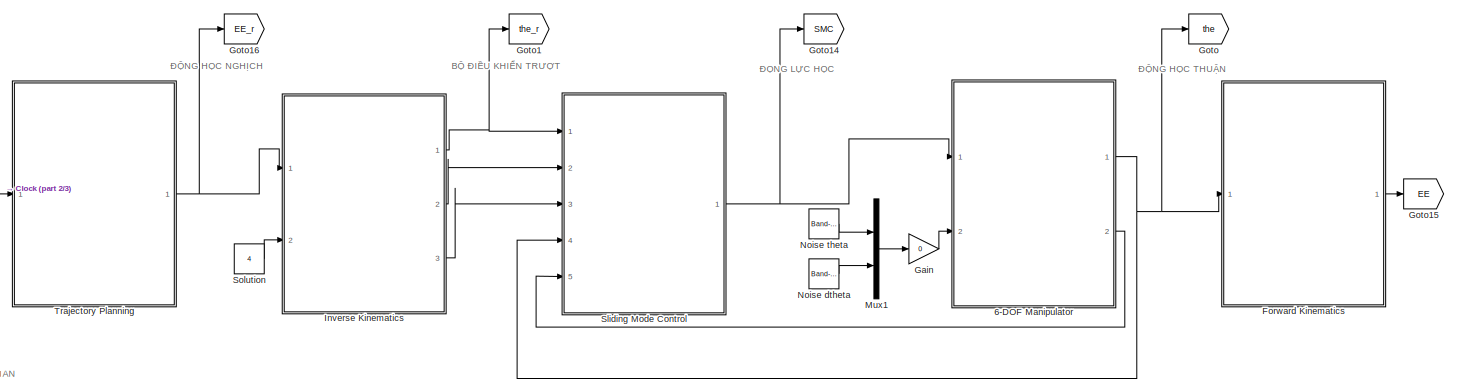
[diagram: root canvas - part 1/3, full width, top band]
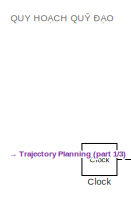
[diagram: root canvas - part 2/3, top left region]
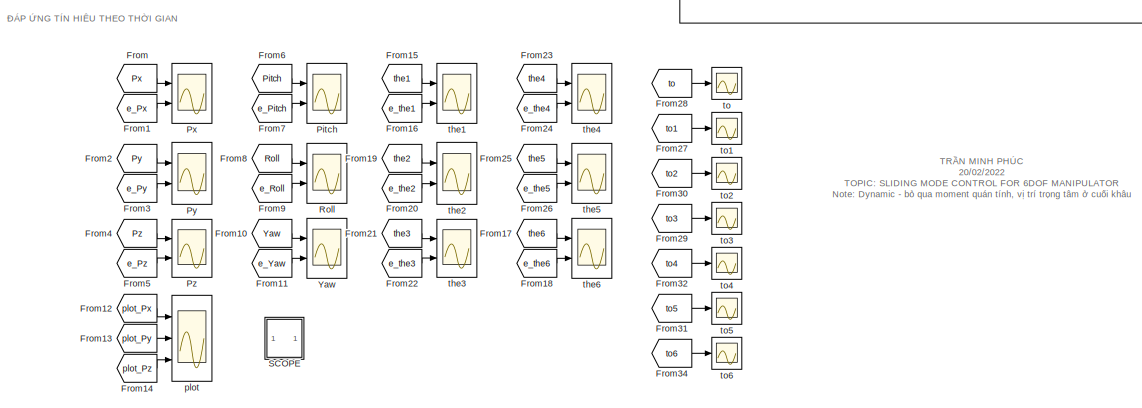
[diagram: root canvas - part 3/3, bottom center region]
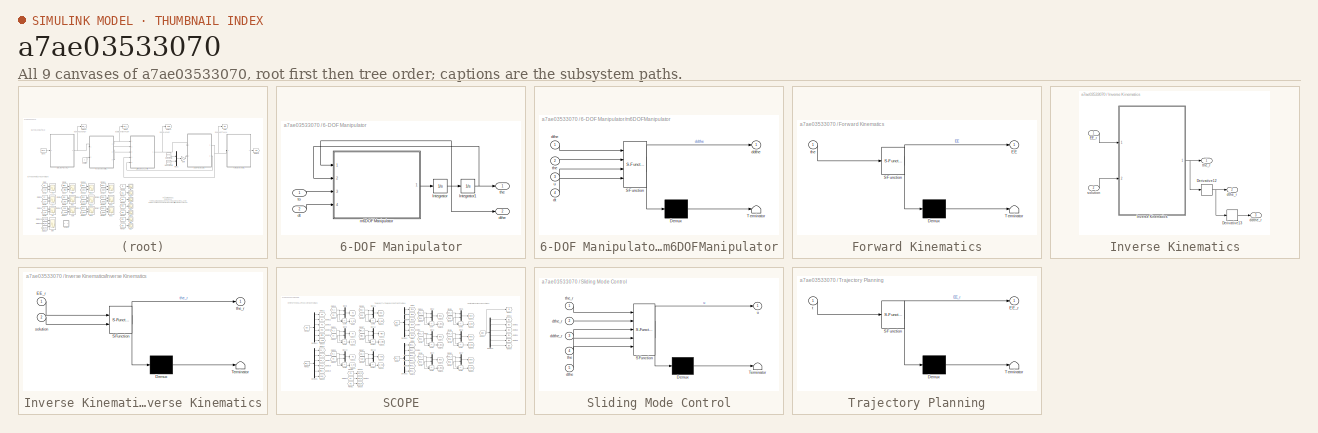
[diagram: thumbnail index - all 9 canvases of the model, root first then tree order]
MODEL slx_a7ae03533070
KIND model
CONFIG AbsTol = auto
CONFIG EnableMultiTasking = off
CONFIG FixedStep = 0.01
CONFIG MaxStep = auto
CONFIG MinStep = auto
CONFIG RelTol = 1e-3
CONFIG SampleTimeConstraint = Unconstrained
CONFIG SolverName = ode14x
CONFIG StartTime = 0.0
CONFIG StopTime = 100
BLOCK [SubSystem] 6-DOF Manipulator
  Ports = [2, 2]
  RequestExecContextInheritance = off
BLOCK [Integrator] 6-DOF Manipulator/Integrator
  InitialCondition = [0.01;0.01;0.01;0.01;0.01;0.01]
  Ports = [1, 1]
BLOCK [Integrator] 6-DOF Manipulator/Integrator1
  InitialCondition = [0.01;0.01;0.01;0.01;0.01;0.01]
  Ports = [1, 1]
BLOCK [Inport] 6-DOF Manipulator/dt
  Port = 2
BLOCK [Outport] 6-DOF Manipulator/dthe
  Port = 2
BLOCK [SubSystem] 6-DOF Manipulator/m6DOFManipulator
  ErrorFcn = Stateflow.Translate.translate
  PermitHierarchicalResolution = ExplicitOnly
  Ports = [4, 1]
  RequestExecContextInheritance = off
  SFBlockType = MATLAB Function
  TreatAsAtomicUnit = on
BLOCK [Demux] 6-DOF Manipulator/m6DOFManipulator/ Demux 
  Outputs = 1
  Ports = [1, 1]
BLOCK [S-Function] 6-DOF Manipulator/m6DOFManipulator/ SFunction 
  EnableBusSupport = on
  FunctionName = sf_sfun
  PortCounts = [4 2]
  Ports = [4, 2]
  SFcnIsStateOwnerBlock = off
  SFunctionDeploymentMode = off
  Tag = Stateflow S-Function 2
BLOCK [Terminator] 6-DOF Manipulator/m6DOFManipulator/ Terminator 
BLOCK [Outport] 6-DOF Manipulator/m6DOFManipulator/ddthe
BLOCK [Inport] 6-DOF Manipulator/m6DOFManipulator/dt
  Port = 4
BLOCK [Inport] 6-DOF Manipulator/m6DOFManipulator/dthe
BLOCK [Inport] 6-DOF Manipulator/m6DOFManipulator/the
  Port = 2
BLOCK [Inport] 6-DOF Manipulator/m6DOFManipulator/u
  Port = 3
BLOCK [Outport] 6-DOF Manipulator/the
BLOCK [Inport] 6-DOF Manipulator/to
BLOCK [Clock] Clock
  DisplayTime = on
BLOCK [SubSystem] Forward Kinematics
  ErrorFcn = Stateflow.Translate.translate
  PermitHierarchicalResolution = ExplicitOnly
  Ports = [1, 1]
  RequestExecContextInheritance = off
  SFBlockType = MATLAB Function
  TreatAsAtomicUnit = on
BLOCK [Demux] Forward Kinematics/ Demux 
  Outputs = 1
  Ports = [1, 1]
BLOCK [S-Function] Forward Kinematics/ SFunction 
  EnableBusSupport = on
  FunctionName = sf_sfun
  PortCounts = [1 2]
  Ports = [1, 2]
  SFcnIsStateOwnerBlock = off
  SFunctionDeploymentMode = off
  Tag = Stateflow S-Function 5
BLOCK [Terminator] Forward Kinematics/ Terminator 
BLOCK [Outport] Forward Kinematics/EE
BLOCK [Inport] Forward Kinematics/the
BLOCK [From] From
  GotoTag = Px
  TagVisibility = global
BLOCK [From] From1
  GotoTag = e_Px
  TagVisibility = global
BLOCK [From] From10
  GotoTag = Yaw
  TagVisibility = global
BLOCK [From] From11
  GotoTag = e_Yaw
  TagVisibility = global
BLOCK [From] From12
  GotoTag = plot_Px
  TagVisibility = global
BLOCK [From] From13
  GotoTag = plot_Py
  TagVisibility = global
BLOCK [From] From14
  GotoTag = plot_Pz
  TagVisibility = global
BLOCK [From] From15
  GotoTag = the1
  TagVisibility = global
BLOCK [From] From16
  GotoTag = e_the1
  TagVisibility = global
BLOCK [From] From17
  GotoTag = the6
  TagVisibility = global
BLOCK [From] From18
  GotoTag = e_the6
  TagVisibility = global
BLOCK [From] From19
  GotoTag = the2
  TagVisibility = global
BLOCK [From] From2
  GotoTag = Py
  TagVisibility = global
BLOCK [From] From20
  GotoTag = e_the2
  TagVisibility = global
BLOCK [From] From21
  GotoTag = the3
  TagVisibility = global
BLOCK [From] From22
  GotoTag = e_the3
  TagVisibility = global
BLOCK [From] From23
  GotoTag = the4
  TagVisibility = global
BLOCK [From] From24
  GotoTag = e_the4
  TagVisibility = global
BLOCK [From] From25
  GotoTag = the5
  TagVisibility = global
BLOCK [From] From26
  GotoTag = e_the5
  TagVisibility = global
BLOCK [From] From27
  GotoTag = to1
  TagVisibility = global
BLOCK [From] From28
  GotoTag = to
  TagVisibility = global
BLOCK [From] From29
  GotoTag = to3
  TagVisibility = global
BLOCK [From] From3
  GotoTag = e_Py
  TagVisibility = global
BLOCK [From] From30
  GotoTag = to2
  TagVisibility = global
BLOCK [From] From31
  GotoTag = to5
  TagVisibility = global
BLOCK [From] From32
  GotoTag = to4
  TagVisibility = global
BLOCK [From] From34
  GotoTag = to6
  TagVisibility = global
BLOCK [From] From4
  GotoTag = Pz
  TagVisibility = global
BLOCK [From] From5
  GotoTag = e_Pz
  TagVisibility = global
BLOCK [From] From6
  GotoTag = Pitch
  TagVisibility = global
BLOCK [From] From7
  GotoTag = e_Pitch
  TagVisibility = global
BLOCK [From] From8
  GotoTag = Roll
  TagVisibility = global
BLOCK [From] From9
  GotoTag = e_Roll
  TagVisibility = global
BLOCK [Gain] Gain
  Gain = 0
BLOCK [Goto] Goto
  GotoTag = the
  TagVisibility = global
BLOCK [Goto] Goto1
  GotoTag = the_r
  TagVisibility = global
BLOCK [Goto] Goto14
  GotoTag = SMC
  TagVisibility = global
BLOCK [Goto] Goto15
  GotoTag = EE
  TagVisibility = global
BLOCK [Goto] Goto16
  GotoTag = EE_r
  TagVisibility = global
BLOCK [SubSystem] Inverse Kinematics
  Ports = [2, 3]
  RequestExecContextInheritance = off
BLOCK [Derivative] Inverse Kinematics/Derivative12
BLOCK [Derivative] Inverse Kinematics/Derivative13
BLOCK [Inport] Inverse Kinematics/EE_r
BLOCK [SubSystem] Inverse Kinematics/Inverse Kinematics
  ErrorFcn = Stateflow.Translate.translate
  PermitHierarchicalResolution = ExplicitOnly
  Ports = [2, 1]
  RequestExecContextInheritance = off
  SFBlockType = MATLAB Function
  TreatAsAtomicUnit = on
BLOCK [Demux] Inverse Kinematics/Inverse Kinematics/ Demux 
  Outputs = 1
  Ports = [1, 1]
BLOCK [S-Function] Inverse Kinematics/Inverse Kinematics/ SFunction 
  EnableBusSupport = on
  FunctionName = sf_sfun
  PortCounts = [2 2]
  Ports = [2, 2]
  SFcnIsStateOwnerBlock = off
  SFunctionDeploymentMode = off
  Tag = Stateflow S-Function 6
BLOCK [Terminator] Inverse Kinematics/Inverse Kinematics/ Terminator 
BLOCK [Inport] Inverse Kinematics/Inverse Kinematics/EE_r
BLOCK [Inport] Inverse Kinematics/Inverse Kinematics/solution
  Port = 2
BLOCK [Outport] Inverse Kinematics/Inverse Kinematics/the_r
BLOCK [Outport] Inverse Kinematics/ddthe_r
  Port = 3
  VectorParamsAs1DForOutWhenUnconnected = off
BLOCK [Outport] Inverse Kinematics/dthe_r
  Port = 2
  VectorParamsAs1DForOutWhenUnconnected = off
BLOCK [Inport] Inverse Kinematics/solution
  Port = 2
BLOCK [Outport] Inverse Kinematics/the_r
  VectorParamsAs1DForOutWhenUnconnected = off
BLOCK [Mux] Mux1
  DisplayOption = bar
  Inputs = 2
  Ports = [2, 1]
BLOCK [Reference] Noise dtheta  REF=simulink/Sources/Band-Limited
White Noise
  Ports = [0, 1]
  SourceBlock = simulink/Sources/Band-Limited\nWhite Noise
  SourceProductBaseCode = SL
  SourceType = Band-Limited White Noise.
BLOCK [Reference] Noise theta  REF=simulink/Sources/Band-Limited
White Noise
  Ports = [0, 1]
  SourceBlock = simulink/Sources/Band-Limited\nWhite Noise
  SourceProductBaseCode = SL
  SourceType = Band-Limited White Noise.
BLOCK [Scope] Pitch
  Floating = off
  NumInputPorts = 2
  Ports = [2]
  ScopeSpecificationString = Simulink.scopes.TimeScopeBlockCfg('CurrentConfiguration', extmgr.ConfigurationSet(extmgr.Configuration('Core','General UI',true,'FigureColor',[1 1 1]),extmgr.Configuration('Core','Source UI',true),extmgr.Configuration('Sources','WiredSimulink',true,'DataLoggingVariableName','ScopeData1'),extmgr.Configuration('Visuals','Time Domain',true,'SerializedDisplays',{struct('MinYLimReal','-1.8012','MaxYLim...<+3058ch>
BLOCK [Scope] Px
  Floating = off
  NumInputPorts = 2
  Ports = [2]
  ScopeSpecificationString = Simulink.scopes.TimeScopeBlockCfg('CurrentConfiguration', extmgr.ConfigurationSet(extmgr.Configuration('Core','General UI',true,'FigureColor',[1 1 1]),extmgr.Configuration('Core','Source UI',true),extmgr.Configuration('Sources','WiredSimulink',true,'DataLoggingVariableName','ScopeData17'),extmgr.Configuration('Visuals','Time Domain',true,'SerializedDisplays',{struct('MinYLimReal','392.9535','MaxYL...<+3029ch>
BLOCK [Scope] Py
  Floating = off
  NumInputPorts = 2
  Ports = [2]
  ScopeSpecificationString = Simulink.scopes.TimeScopeBlockCfg('CurrentConfiguration', extmgr.ConfigurationSet(extmgr.Configuration('Core','General UI',true,'FigureColor',[1 1 1]),extmgr.Configuration('Core','Source UI',true),extmgr.Configuration('Sources','WiredSimulink',true,'DataLoggingVariableName','ScopeData18'),extmgr.Configuration('Visuals','Time Domain',true,'SerializedDisplays',{struct('MinYLimReal','-63.97672','MaxY...<+3042ch>
BLOCK [Scope] Pz
  Floating = off
  NumInputPorts = 2
  Ports = [2]
  ScopeSpecificationString = Simulink.scopes.TimeScopeBlockCfg('CurrentConfiguration', extmgr.ConfigurationSet(extmgr.Configuration('Core','General UI',true,'FigureColor',[1 1 1]),extmgr.Configuration('Core','Source UI',true),extmgr.Configuration('Sources','WiredSimulink',true),extmgr.Configuration('Visuals','Time Domain',true,'SerializedDisplays',{struct('MinYLimReal','587.28849','MaxYLimReal','712.71261','YLabelReal','Biên ...<+3006ch>
BLOCK [Scope] Roll
  Floating = off
  NumInputPorts = 2
  Ports = [2]
  ScopeSpecificationString = Simulink.scopes.TimeScopeBlockCfg('CurrentConfiguration', extmgr.ConfigurationSet(extmgr.Configuration('Core','General UI',true,'FigureColor',[1 1 1]),extmgr.Configuration('Core','Source UI',true),extmgr.Configuration('Sources','WiredSimulink',true,'DataLoggingVariableName','ScopeData2'),extmgr.Configuration('Visuals','Time Domain',true,'SerializedDisplays',{struct('MinYLimReal','-3.42628','MaxYLi...<+3052ch>
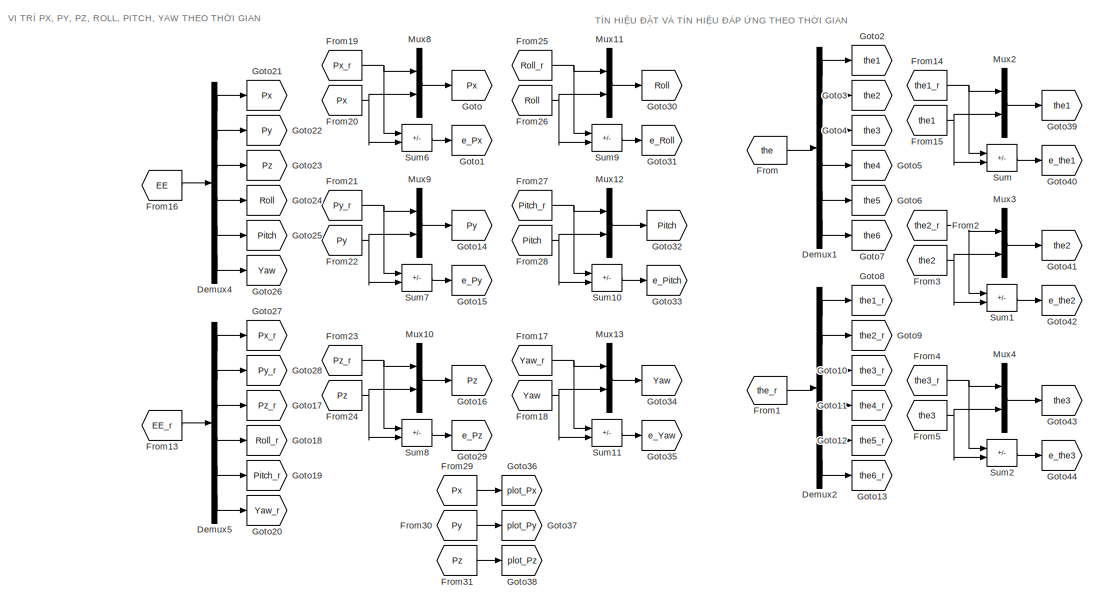
[diagram: SCOPE - part 1/2, center side, full height]
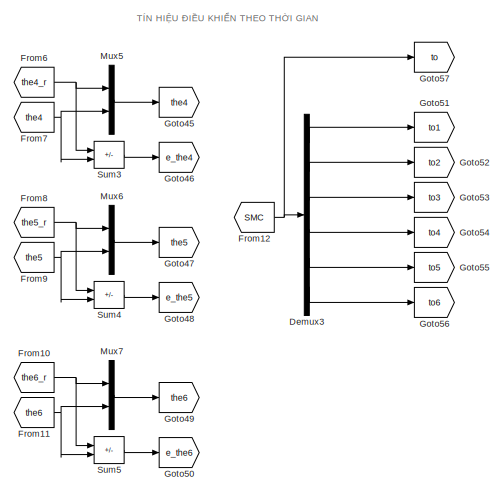
[diagram: SCOPE - part 2/2, right side, full height]
BLOCK [SubSystem] SCOPE
  NameLocation = right
  Ports = []
  RequestExecContextInheritance = off
BLOCK [Demux] SCOPE/Demux1
  Outputs = 6
  Ports = [1, 6]
BLOCK [Demux] SCOPE/Demux2
  Outputs = 6
  Ports = [1, 6]
BLOCK [Demux] SCOPE/Demux3
  Outputs = 6
  Ports = [1, 6]
BLOCK [Demux] SCOPE/Demux4
  Outputs = 6
  Ports = [1, 6]
BLOCK [Demux] SCOPE/Demux5
  Outputs = 6
  Ports = [1, 6]
BLOCK [From] SCOPE/From
  GotoTag = the
  TagVisibility = global
BLOCK [From] SCOPE/From1
  GotoTag = the_r
  TagVisibility = global
BLOCK [From] SCOPE/From10
  GotoTag = the6_r
BLOCK [From] SCOPE/From11
  GotoTag = the6
BLOCK [From] SCOPE/From12
  GotoTag = SMC
  TagVisibility = global
BLOCK [From] SCOPE/From13
  GotoTag = EE_r
  TagVisibility = global
BLOCK [From] SCOPE/From14
  GotoTag = the1_r
BLOCK [From] SCOPE/From15
  GotoTag = the1
BLOCK [From] SCOPE/From16
  GotoTag = EE
  TagVisibility = global
BLOCK [From] SCOPE/From17
  GotoTag = Yaw_r
BLOCK [From] SCOPE/From18
  GotoTag = Yaw
BLOCK [From] SCOPE/From19
  GotoTag = Px_r
BLOCK [From] SCOPE/From2
  GotoTag = the2_r
BLOCK [From] SCOPE/From20
  GotoTag = Px
BLOCK [From] SCOPE/From21
  GotoTag = Py_r
BLOCK [From] SCOPE/From22
  GotoTag = Py
BLOCK [From] SCOPE/From23
  GotoTag = Pz_r
BLOCK [From] SCOPE/From24
  GotoTag = Pz
BLOCK [From] SCOPE/From25
  GotoTag = Roll_r
BLOCK [From] SCOPE/From26
  GotoTag = Roll
BLOCK [From] SCOPE/From27
  GotoTag = Pitch_r
BLOCK [From] SCOPE/From28
  GotoTag = Pitch
BLOCK [From] SCOPE/From29
  GotoTag = Px
BLOCK [From] SCOPE/From3
  GotoTag = the2
BLOCK [From] SCOPE/From30
  GotoTag = Py
BLOCK [From] SCOPE/From31
  GotoTag = Pz
BLOCK [From] SCOPE/From4
  GotoTag = the3_r
BLOCK [From] SCOPE/From5
  GotoTag = the3
BLOCK [From] SCOPE/From6
  GotoTag = the4_r
BLOCK [From] SCOPE/From7
  GotoTag = the4
BLOCK [From] SCOPE/From8
  GotoTag = the5_r
BLOCK [From] SCOPE/From9
  GotoTag = the5
BLOCK [Goto] SCOPE/Goto
  GotoTag = Px
  TagVisibility = global
BLOCK [Goto] SCOPE/Goto1
  GotoTag = e_Px
  TagVisibility = global
BLOCK [Goto] SCOPE/Goto10
  GotoTag = the3_r
BLOCK [Goto] SCOPE/Goto11
  GotoTag = the4_r
BLOCK [Goto] SCOPE/Goto12
  GotoTag = the5_r
BLOCK [Goto] SCOPE/Goto13
  GotoTag = the6_r
BLOCK [Goto] SCOPE/Goto14
  GotoTag = Py
  TagVisibility = global
BLOCK [Goto] SCOPE/Goto15
  GotoTag = e_Py
  TagVisibility = global
BLOCK [Goto] SCOPE/Goto16
  GotoTag = Pz
  TagVisibility = global
BLOCK [Goto] SCOPE/Goto17
  GotoTag = Pz_r
BLOCK [Goto] SCOPE/Goto18
  GotoTag = Roll_r
BLOCK [Goto] SCOPE/Goto19
  GotoTag = Pitch_r
BLOCK [Goto] SCOPE/Goto2
  GotoTag = the1
BLOCK [Goto] SCOPE/Goto20
  GotoTag = Yaw_r
BLOCK [Goto] SCOPE/Goto21
  GotoTag = Px
BLOCK [Goto] SCOPE/Goto22
  GotoTag = Py
BLOCK [Goto] SCOPE/Goto23
  GotoTag = Pz
BLOCK [Goto] SCOPE/Goto24
  GotoTag = Roll
BLOCK [Goto] SCOPE/Goto25
  GotoTag = Pitch
BLOCK [Goto] SCOPE/Goto26
  GotoTag = Yaw
BLOCK [Goto] SCOPE/Goto27
  GotoTag = Px_r
BLOCK [Goto] SCOPE/Goto28
  GotoTag = Py_r
BLOCK [Goto] SCOPE/Goto29
  GotoTag = e_Pz
  TagVisibility = global
BLOCK [Goto] SCOPE/Goto3
  GotoTag = the2
BLOCK [Goto] SCOPE/Goto30
  GotoTag = Roll
  TagVisibility = global
BLOCK [Goto] SCOPE/Goto31
  GotoTag = e_Roll
  TagVisibility = global
BLOCK [Goto] SCOPE/Goto32
  GotoTag = Pitch
  TagVisibility = global
BLOCK [Goto] SCOPE/Goto33
  GotoTag = e_Pitch
  TagVisibility = global
BLOCK [Goto] SCOPE/Goto34
  GotoTag = Yaw
  TagVisibility = global
BLOCK [Goto] SCOPE/Goto35
  GotoTag = e_Yaw
  TagVisibility = global
BLOCK [Goto] SCOPE/Goto36
  GotoTag = plot_Px
  TagVisibility = global
BLOCK [Goto] SCOPE/Goto37
  GotoTag = plot_Py
  TagVisibility = global
BLOCK [Goto] SCOPE/Goto38
  GotoTag = plot_Pz
  TagVisibility = global
BLOCK [Goto] SCOPE/Goto39
  GotoTag = the1
  TagVisibility = global
BLOCK [Goto] SCOPE/Goto4
  GotoTag = the3
BLOCK [Goto] SCOPE/Goto40
  GotoTag = e_the1
  TagVisibility = global
BLOCK [Goto] SCOPE/Goto41
  GotoTag = the2
  TagVisibility = global
BLOCK [Goto] SCOPE/Goto42
  GotoTag = e_the2
  TagVisibility = global
BLOCK [Goto] SCOPE/Goto43
  GotoTag = the3
  TagVisibility = global
BLOCK [Goto] SCOPE/Goto44
  GotoTag = e_the3
  TagVisibility = global
BLOCK [Goto] SCOPE/Goto45
  GotoTag = the4
  TagVisibility = global
BLOCK [Goto] SCOPE/Goto46
  GotoTag = e_the4
  TagVisibility = global
BLOCK [Goto] SCOPE/Goto47
  GotoTag = the5
  TagVisibility = global
BLOCK [Goto] SCOPE/Goto48
  GotoTag = e_the5
  TagVisibility = global
BLOCK [Goto] SCOPE/Goto49
  GotoTag = the6
  TagVisibility = global
BLOCK [Goto] SCOPE/Goto5
  GotoTag = the4
BLOCK [Goto] SCOPE/Goto50
  GotoTag = e_the6
  TagVisibility = global
BLOCK [Goto] SCOPE/Goto51
  GotoTag = to1
  TagVisibility = global
BLOCK [Goto] SCOPE/Goto52
  GotoTag = to2
  TagVisibility = global
BLOCK [Goto] SCOPE/Goto53
  GotoTag = to3
  TagVisibility = global
BLOCK [Goto] SCOPE/Goto54
  GotoTag = to4
  TagVisibility = global
BLOCK [Goto] SCOPE/Goto55
  GotoTag = to5
  TagVisibility = global
BLOCK [Goto] SCOPE/Goto56
  GotoTag = to6
  TagVisibility = global
BLOCK [Goto] SCOPE/Goto57
  GotoTag = to
  TagVisibility = global
BLOCK [Goto] SCOPE/Goto6
  GotoTag = the5
BLOCK [Goto] SCOPE/Goto7
  GotoTag = the6
BLOCK [Goto] SCOPE/Goto8
  GotoTag = the1_r
BLOCK [Goto] SCOPE/Goto9
  GotoTag = the2_r
BLOCK [Mux] SCOPE/Mux10
  DisplayOption = bar
  Inputs = 2
  Ports = [2, 1]
BLOCK [Mux] SCOPE/Mux11
  DisplayOption = bar
  Inputs = 2
  Ports = [2, 1]
BLOCK [Mux] SCOPE/Mux12
  DisplayOption = bar
  Inputs = 2
  Ports = [2, 1]
BLOCK [Mux] SCOPE/Mux13
  DisplayOption = bar
  Inputs = 2
  Ports = [2, 1]
BLOCK [Mux] SCOPE/Mux2
  DisplayOption = bar
  Inputs = 2
  Ports = [2, 1]
BLOCK [Mux] SCOPE/Mux3
  DisplayOption = bar
  Inputs = 2
  Ports = [2, 1]
BLOCK [Mux] SCOPE/Mux4
  DisplayOption = bar
  Inputs = 2
  Ports = [2, 1]
BLOCK [Mux] SCOPE/Mux5
  DisplayOption = bar
  Inputs = 2
  Ports = [2, 1]
BLOCK [Mux] SCOPE/Mux6
  DisplayOption = bar
  Inputs = 2
  NameLocation = left
  Ports = [2, 1]
BLOCK [Mux] SCOPE/Mux7
  DisplayOption = bar
  Inputs = 2
  Ports = [2, 1]
BLOCK [Mux] SCOPE/Mux8
  DisplayOption = bar
  Inputs = 2
  Ports = [2, 1]
BLOCK [Mux] SCOPE/Mux9
  DisplayOption = bar
  Inputs = 2
  Ports = [2, 1]
BLOCK [Sum] SCOPE/Sum
  IconShape = rectangular
  Inputs = +-
  Ports = [2, 1]
BLOCK [Sum] SCOPE/Sum1
  IconShape = rectangular
  Inputs = +-
  Ports = [2, 1]
BLOCK [Sum] SCOPE/Sum10
  IconShape = rectangular
  Inputs = +-
  Ports = [2, 1]
BLOCK [Sum] SCOPE/Sum11
  IconShape = rectangular
  Inputs = +-
  Ports = [2, 1]
BLOCK [Sum] SCOPE/Sum2
  IconShape = rectangular
  Inputs = +-
  Ports = [2, 1]
BLOCK [Sum] SCOPE/Sum3
  IconShape = rectangular
  Inputs = +-
  Ports = [2, 1]
BLOCK [Sum] SCOPE/Sum4
  IconShape = rectangular
  Inputs = +-
  Ports = [2, 1]
BLOCK [Sum] SCOPE/Sum5
  IconShape = rectangular
  Inputs = +-
  Ports = [2, 1]
BLOCK [Sum] SCOPE/Sum6
  IconShape = rectangular
  Inputs = +-
  Ports = [2, 1]
BLOCK [Sum] SCOPE/Sum7
  IconShape = rectangular
  Inputs = +-
  Ports = [2, 1]
BLOCK [Sum] SCOPE/Sum8
  IconShape = rectangular
  Inputs = +-
  Ports = [2, 1]
BLOCK [Sum] SCOPE/Sum9
  IconShape = rectangular
  Inputs = +-
  Ports = [2, 1]
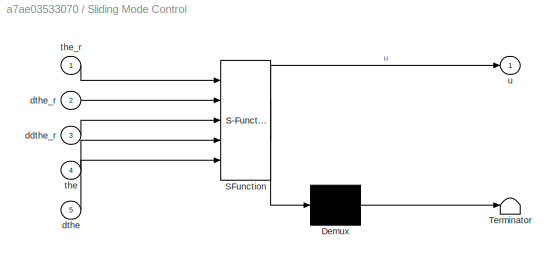
BLOCK [SubSystem] Sliding Mode Control
  ErrorFcn = Stateflow.Translate.translate
  PermitHierarchicalResolution = ExplicitOnly
  Ports = [5, 1]
  RequestExecContextInheritance = off
  SFBlockType = MATLAB Function
  TreatAsAtomicUnit = on
BLOCK [Demux] Sliding Mode Control/ Demux 
  Outputs = 1
  Ports = [1, 1]
BLOCK [S-Function] Sliding Mode Control/ SFunction 
  EnableBusSupport = on
  FunctionName = sf_sfun
  PortCounts = [5 2]
  Ports = [5, 2]
  SFcnIsStateOwnerBlock = off
  SFunctionDeploymentMode = off
  Tag = Stateflow S-Function 1
BLOCK [Terminator] Sliding Mode Control/ Terminator 
BLOCK [Inport] Sliding Mode Control/ddthe_r
  Port = 3
BLOCK [Inport] Sliding Mode Control/dthe
  Port = 5
BLOCK [Inport] Sliding Mode Control/dthe_r
  Port = 2
BLOCK [Inport] Sliding Mode Control/the
  Port = 4
BLOCK [Inport] Sliding Mode Control/the_r
BLOCK [Outport] Sliding Mode Control/u
BLOCK [Constant] Solution
  Value = 4
BLOCK [SubSystem] Trajectory Planning
  ErrorFcn = Stateflow.Translate.translate
  PermitHierarchicalResolution = ExplicitOnly
  Ports = [1, 1]
  RequestExecContextInheritance = off
  SFBlockType = MATLAB Function
  TreatAsAtomicUnit = on
BLOCK [Demux] Trajectory Planning/ Demux 
  Outputs = 1
  Ports = [1, 1]
BLOCK [S-Function] Trajectory Planning/ SFunction 
  EnableBusSupport = on
  FunctionName = sf_sfun
  PortCounts = [1 2]
  Ports = [1, 2]
  SFcnIsStateOwnerBlock = off
  SFunctionDeploymentMode = off
  Tag = Stateflow S-Function 4
BLOCK [Terminator] Trajectory Planning/ Terminator 
BLOCK [Outport] Trajectory Planning/EE_r
BLOCK [Inport] Trajectory Planning/t
BLOCK [Scope] Yaw
  Floating = off
  NumInputPorts = 2
  Ports = [2]
  ScopeSpecificationString = Simulink.scopes.TimeScopeBlockCfg('CurrentConfiguration', extmgr.ConfigurationSet(extmgr.Configuration('Core','General UI',true,'FigureColor',[1 1 1]),extmgr.Configuration('Core','Source UI',true),extmgr.Configuration('Sources','WiredSimulink',true,'DataLoggingVariableName','ScopeData3'),extmgr.Configuration('Visuals','Time Domain',true,'SerializedDisplays',{struct('MinYLimReal','-0.89817','MaxYLi...<+3044ch>
BLOCK [Scope] plot
  Floating = off
  NumInputPorts = 3
  Ports = [3]
  ScopeSpecificationString = Simulink.scopes.TimeScopeBlockCfg('CurrentConfiguration', extmgr.ConfigurationSet(extmgr.Configuration('Core','General UI',true),extmgr.Configuration('Core','Source UI',true),extmgr.Configuration('Sources','WiredSimulink',true,'DataLoggingVariableName','SMC','DataLogging',true,'DataLoggingSaveFormat','Structure'),extmgr.Configuration('Visuals','Time Domain',true,'SerializedDisplays',{struct('MinYL...<+1495ch>
BLOCK [Scope] the1
  Floating = off
  NumInputPorts = 2
  Ports = [2]
  ScopeSpecificationString = Simulink.scopes.TimeScopeBlockCfg('CurrentConfiguration', extmgr.ConfigurationSet(extmgr.Configuration('Core','General UI',true,'FigureColor',[1 1 1]),extmgr.Configuration('Core','Source UI',true),extmgr.Configuration('Sources','WiredSimulink',true,'DataLoggingVariableName','ScopeData6'),extmgr.Configuration('Visuals','Time Domain',true,'SerializedDisplays',{struct('MinYLimReal','-0.12794','MaxYLi...<+3045ch>
BLOCK [Scope] the2
  Floating = off
  NumInputPorts = 2
  Ports = [2]
  ScopeSpecificationString = Simulink.scopes.TimeScopeBlockCfg('CurrentConfiguration', extmgr.ConfigurationSet(extmgr.Configuration('Core','General UI',true,'FigureColor',[1 1 1]),extmgr.Configuration('Core','Source UI',true),extmgr.Configuration('Sources','WiredSimulink',true,'DataLoggingVariableName','ScopeData7'),extmgr.Configuration('Visuals','Time Domain',true,'SerializedDisplays',{struct('MinYLimReal','-0.12832','MaxYLi...<+3051ch>
BLOCK [Scope] the3
  Floating = off
  NumInputPorts = 2
  Ports = [2]
  ScopeSpecificationString = Simulink.scopes.TimeScopeBlockCfg('CurrentConfiguration', extmgr.ConfigurationSet(extmgr.Configuration('Core','General UI',true,'FigureColor',[1 1 1]),extmgr.Configuration('Core','Source UI',true),extmgr.Configuration('Sources','WiredSimulink',true,'DataLoggingVariableName','ScopeData4'),extmgr.Configuration('Visuals','Time Domain',true,'SerializedDisplays',{struct('MinYLimReal','-0.06363','MaxYLi...<+3051ch>
BLOCK [Scope] the4
  Floating = off
  NumInputPorts = 2
  Ports = [2]
  ScopeSpecificationString = Simulink.scopes.TimeScopeBlockCfg('CurrentConfiguration', extmgr.ConfigurationSet(extmgr.Configuration('Core','General UI',true,'FigureColor',[1 1 1]),extmgr.Configuration('Core','Source UI',true),extmgr.Configuration('Sources','WiredSimulink',true,'DataLoggingVariableName','ScopeData5'),extmgr.Configuration('Visuals','Time Domain',true,'SerializedDisplays',{struct('MinYLimReal','-0.03217','MaxYLi...<+3051ch>
BLOCK [Scope] the5
  Floating = off
  NumInputPorts = 2
  Ports = [2]
  ScopeSpecificationString = Simulink.scopes.TimeScopeBlockCfg('CurrentConfiguration', extmgr.ConfigurationSet(extmgr.Configuration('Core','General UI',true,'FigureColor',[1 1 1]),extmgr.Configuration('Core','Source UI',true),extmgr.Configuration('Sources','WiredSimulink',true,'DataLoggingVariableName','ScopeData8'),extmgr.Configuration('Visuals','Time Domain',true,'SerializedDisplays',{struct('MinYLimReal','-1.61881','MaxYLi...<+3051ch>
BLOCK [Scope] the6
  Floating = off
  NumInputPorts = 2
  Ports = [2]
  ScopeSpecificationString = Simulink.scopes.TimeScopeBlockCfg('CurrentConfiguration', extmgr.ConfigurationSet(extmgr.Configuration('Core','General UI',true,'FigureColor',[1 1 1]),extmgr.Configuration('Core','Source UI',true),extmgr.Configuration('Sources','WiredSimulink',true,'DataLoggingVariableName','ScopeData9'),extmgr.Configuration('Visuals','Time Domain',true,'SerializedDisplays',{struct('MinYLimReal','-3.32869','MaxYLi...<+3051ch>
BLOCK [Scope] to
  Floating = off
  NumInputPorts = 1
  Ports = [1]
  ScopeSpecificationString = Simulink.scopes.TimeScopeBlockCfg('CurrentConfiguration', extmgr.ConfigurationSet(extmgr.Configuration('Core','General UI',true,'FigureColor',[1 1 1]),extmgr.Configuration('Core','Source UI',true),extmgr.Configuration('Sources','WiredSimulink',true,'DataLoggingVariableName','ScopeData13'),extmgr.Configuration('Visuals','Time Domain',true,'SerializedDisplays',{struct('MinYLimReal','-334.03044','Max...<+2136ch>
BLOCK [Scope] to1
  Floating = off
  NumInputPorts = 1
  Ports = [1]
  ScopeSpecificationString = Simulink.scopes.TimeScopeBlockCfg('CurrentConfiguration', extmgr.ConfigurationSet(extmgr.Configuration('Core','General UI',true,'FigureColor',[1 1 1]),extmgr.Configuration('Core','Source UI',true),extmgr.Configuration('Sources','WiredSimulink',true,'DataLoggingVariableName','ScopeData7'),extmgr.Configuration('Visuals','Time Domain',true,'SerializedDisplays',{struct('MinYLimReal','-296.86856','MaxY...<+2367ch>
BLOCK [Scope] to2
  Floating = off
  NumInputPorts = 1
  Ports = [1]
  ScopeSpecificationString = Simulink.scopes.TimeScopeBlockCfg('CurrentConfiguration', extmgr.ConfigurationSet(extmgr.Configuration('Core','General UI',true,'FigureColor',[1 1 1]),extmgr.Configuration('Core','Source UI',true),extmgr.Configuration('Sources','WiredSimulink',true,'DataLoggingVariableName','ScopeData8'),extmgr.Configuration('Visuals','Time Domain',true,'SerializedDisplays',{struct('MinYLimReal','-334.03044','MaxY...<+2342ch>
BLOCK [Scope] to3
  Floating = off
  NumInputPorts = 1
  Ports = [1]
  ScopeSpecificationString = Simulink.scopes.TimeScopeBlockCfg('CurrentConfiguration', extmgr.ConfigurationSet(extmgr.Configuration('Core','General UI',true,'FigureColor',[1 1 1]),extmgr.Configuration('Core','Source UI',true),extmgr.Configuration('Sources','WiredSimulink',true,'DataLoggingVariableName','ScopeData9'),extmgr.Configuration('Visuals','Time Domain',true,'SerializedDisplays',{struct('MinYLimReal','-265.99614','MaxY...<+2342ch>
BLOCK [Scope] to4
  Floating = off
  NumInputPorts = 1
  Ports = [1]
  ScopeSpecificationString = Simulink.scopes.TimeScopeBlockCfg('CurrentConfiguration', extmgr.ConfigurationSet(extmgr.Configuration('Core','General UI',true,'FigureColor',[1 1 1]),extmgr.Configuration('Core','Source UI',true),extmgr.Configuration('Sources','WiredSimulink',true,'DataLoggingVariableName','ScopeData10'),extmgr.Configuration('Visuals','Time Domain',true,'SerializedDisplays',{struct('MinYLimReal','-302.45699','Max...<+2343ch>
BLOCK [Scope] to5
  Floating = off
  NumInputPorts = 1
  Ports = [1]
  ScopeSpecificationString = Simulink.scopes.TimeScopeBlockCfg('CurrentConfiguration', extmgr.ConfigurationSet(extmgr.Configuration('Core','General UI',true,'FigureColor',[1 1 1]),extmgr.Configuration('Core','Source UI',true),extmgr.Configuration('Sources','WiredSimulink',true,'DataLoggingVariableName','ScopeData11'),extmgr.Configuration('Visuals','Time Domain',true,'SerializedDisplays',{struct('MinYLimReal','-140.30706','Max...<+2341ch>
BLOCK [Scope] to6
  Floating = off
  NumInputPorts = 1
  Ports = [1]
  ScopeSpecificationString = Simulink.scopes.TimeScopeBlockCfg('CurrentConfiguration', extmgr.ConfigurationSet(extmgr.Configuration('Core','General UI',true,'FigureColor',[1 1 1]),extmgr.Configuration('Core','Source UI',true),extmgr.Configuration('Sources','WiredSimulink',true,'DataLoggingVariableName','ScopeData12'),extmgr.Configuration('Visuals','Time Domain',true,'SerializedDisplays',{struct('MinYLimReal','-304.57347','Max...<+2343ch>
ANNOTATION (root): BỘ ĐIỀU KHIỂN TRƯỢT
ANNOTATION (root): QUY HOẠCH QUỸ ĐẠO
ANNOTATION (root): TRẦN MINH PHÚC 20/02/2022 TOPIC: SLIDING MODE CONTROL FOR 6DOF MANIPULATOR Note: Dynamic - bỏ qua moment quán tính, vị trí trọng tâm ở cuối khâu
ANNOTATION (root): ĐÁP ỨNG TÍN HIÊU THEO THỜI GIAN
ANNOTATION (root): ĐỌNG LỰC HỌC
ANNOTATION (root): ĐỘNG HỌC NGHỊCH
ANNOTATION (root): ĐỘNG HỌC THUẬN
ANNOTATION SCOPE: TÍN HIỆU ĐIỀU KHIỂN THEO THỜI GIAN
ANNOTATION SCOPE: TÍN HIỆU ĐẶT VÀ TÍN HIỆU ĐÁP ỨNG THEO THỜI GIAN
ANNOTATION SCOPE: VỊ TRÍ PX, PY, PZ, ROLL, PITCH, YAW THEO THỜI GIAN
NET 6-DOF Manipulator/Integrator1:1 -> 6-DOF Manipulator/m6DOFManipulator:2, 6-DOF Manipulator/the:1
NET 6-DOF Manipulator/Integrator:1 -> 6-DOF Manipulator/Integrator1:1, 6-DOF Manipulator/dthe:1, 6-DOF Manipulator/m6DOFManipulator:1
LINE 6-DOF Manipulator/dt:1 -> 6-DOF Manipulator/m6DOFManipulator:4
LINE 6-DOF Manipulator/m6DOFManipulator:1 -> 6-DOF Manipulator/Integrator:1
LINE 6-DOF Manipulator/to:1 -> 6-DOF Manipulator/m6DOFManipulator:3
NET 6-DOF Manipulator:1 -> Forward Kinematics:1, Goto:1, Sliding Mode Control:4
LINE 6-DOF Manipulator:2 -> Sliding Mode Control:5
LINE Clock:1 -> Trajectory Planning:1
LINE Forward Kinematics:1 -> Goto15:1
LINE From10:1 -> Yaw:1
LINE From11:1 -> Yaw:2
LINE From12:1 -> plot:1
LINE From13:1 -> plot:2
LINE From14:1 -> plot:3
LINE From15:1 -> the1:1
LINE From16:1 -> the1:2
LINE From17:1 -> the6:1
LINE From18:1 -> the6:2
LINE From19:1 -> the2:1
LINE From1:1 -> Px:2
LINE From20:1 -> the2:2
LINE From21:1 -> the3:1
LINE From22:1 -> the3:2
LINE From23:1 -> the4:1
LINE From24:1 -> the4:2
LINE From25:1 -> the5:1
LINE From26:1 -> the5:2
LINE From27:1 -> to1:1
LINE From28:1 -> to:1
LINE From29:1 -> to3:1
LINE From2:1 -> Py:1
LINE From30:1 -> to2:1
LINE From31:1 -> to5:1
LINE From32:1 -> to4:1
LINE From34:1 -> to6:1
LINE From3:1 -> Py:2
LINE From4:1 -> Pz:1
LINE From5:1 -> Pz:2
LINE From6:1 -> Pitch:1
LINE From7:1 -> Pitch:2
LINE From8:1 -> Roll:1
LINE From9:1 -> Roll:2
LINE From:1 -> Px:1
LINE Gain:1 -> 6-DOF Manipulator:2
NET Inverse Kinematics/Derivative12:1 -> Inverse Kinematics/Derivative13:1, Inverse Kinematics/dthe_r:1
LINE Inverse Kinematics/Derivative13:1 -> Inverse Kinematics/ddthe_r:1
LINE Inverse Kinematics/EE_r:1 -> Inverse Kinematics/Inverse Kinematics:1
NET Inverse Kinematics/Inverse Kinematics:1 -> Inverse Kinematics/Derivative12:1, Inverse Kinematics/the_r:1
LINE Inverse Kinematics/solution:1 -> Inverse Kinematics/Inverse Kinematics:2
NET Inverse Kinematics:1 -> Goto1:1, Sliding Mode Control:1
LINE Inverse Kinematics:2 -> Sliding Mode Control:2
LINE Inverse Kinematics:3 -> Sliding Mode Control:3
LINE Mux1:1 -> Gain:1
LINE Noise dtheta:1 -> Mux1:2
LINE Noise theta:1 -> Mux1:1
LINE SCOPE/Demux1:1 -> SCOPE/Goto2:1
LINE SCOPE/Demux1:2 -> SCOPE/Goto3:1
LINE SCOPE/Demux1:3 -> SCOPE/Goto4:1
LINE SCOPE/Demux1:4 -> SCOPE/Goto5:1
LINE SCOPE/Demux1:5 -> SCOPE/Goto6:1
LINE SCOPE/Demux1:6 -> SCOPE/Goto7:1
LINE SCOPE/Demux2:1 -> SCOPE/Goto8:1
LINE SCOPE/Demux2:2 -> SCOPE/Goto9:1
LINE SCOPE/Demux2:3 -> SCOPE/Goto10:1
LINE SCOPE/Demux2:4 -> SCOPE/Goto11:1
LINE SCOPE/Demux2:5 -> SCOPE/Goto12:1
LINE SCOPE/Demux2:6 -> SCOPE/Goto13:1
LINE SCOPE/Demux3:1 -> SCOPE/Goto51:1
LINE SCOPE/Demux3:2 -> SCOPE/Goto52:1
LINE SCOPE/Demux3:3 -> SCOPE/Goto53:1
LINE SCOPE/Demux3:4 -> SCOPE/Goto54:1
LINE SCOPE/Demux3:5 -> SCOPE/Goto55:1
LINE SCOPE/Demux3:6 -> SCOPE/Goto56:1
LINE SCOPE/Demux4:1 -> SCOPE/Goto21:1
LINE SCOPE/Demux4:2 -> SCOPE/Goto22:1
LINE SCOPE/Demux4:3 -> SCOPE/Goto23:1
LINE SCOPE/Demux4:4 -> SCOPE/Goto24:1
LINE SCOPE/Demux4:5 -> SCOPE/Goto25:1
LINE SCOPE/Demux4:6 -> SCOPE/Goto26:1
LINE SCOPE/Demux5:1 -> SCOPE/Goto27:1
LINE SCOPE/Demux5:2 -> SCOPE/Goto28:1
LINE SCOPE/Demux5:3 -> SCOPE/Goto17:1
LINE SCOPE/Demux5:4 -> SCOPE/Goto18:1
LINE SCOPE/Demux5:5 -> SCOPE/Goto19:1
LINE SCOPE/Demux5:6 -> SCOPE/Goto20:1
NET SCOPE/From10:1 -> SCOPE/Mux7:1, SCOPE/Sum5:1
NET SCOPE/From11:1 -> SCOPE/Mux7:2, SCOPE/Sum5:2
NET SCOPE/From12:1 -> SCOPE/Demux3:1, SCOPE/Goto57:1
LINE SCOPE/From13:1 -> SCOPE/Demux5:1
NET SCOPE/From14:1 -> SCOPE/Mux2:1, SCOPE/Sum:1
NET SCOPE/From15:1 -> SCOPE/Mux2:2, SCOPE/Sum:2
LINE SCOPE/From16:1 -> SCOPE/Demux4:1
NET SCOPE/From17:1 -> SCOPE/Mux13:1, SCOPE/Sum11:1
NET SCOPE/From18:1 -> SCOPE/Mux13:2, SCOPE/Sum11:2
NET SCOPE/From19:1 -> SCOPE/Mux8:1, SCOPE/Sum6:1
LINE SCOPE/From1:1 -> SCOPE/Demux2:1
NET SCOPE/From20:1 -> SCOPE/Mux8:2, SCOPE/Sum6:2
NET SCOPE/From21:1 -> SCOPE/Mux9:1, SCOPE/Sum7:1
NET SCOPE/From22:1 -> SCOPE/Mux9:2, SCOPE/Sum7:2
NET SCOPE/From23:1 -> SCOPE/Mux10:1, SCOPE/Sum8:1
NET SCOPE/From24:1 -> SCOPE/Mux10:2, SCOPE/Sum8:2
NET SCOPE/From25:1 -> SCOPE/Mux11:1, SCOPE/Sum9:1
NET SCOPE/From26:1 -> SCOPE/Mux11:2, SCOPE/Sum9:2
NET SCOPE/From27:1 -> SCOPE/Mux12:1, SCOPE/Sum10:1
NET SCOPE/From28:1 -> SCOPE/Mux12:2, SCOPE/Sum10:2
LINE SCOPE/From29:1 -> SCOPE/Goto36:1
NET SCOPE/From2:1 -> SCOPE/Mux3:1, SCOPE/Sum1:1
LINE SCOPE/From30:1 -> SCOPE/Goto37:1
LINE SCOPE/From31:1 -> SCOPE/Goto38:1
NET SCOPE/From3:1 -> SCOPE/Mux3:2, SCOPE/Sum1:2
NET SCOPE/From4:1 -> SCOPE/Mux4:1, SCOPE/Sum2:1
NET SCOPE/From5:1 -> SCOPE/Mux4:2, SCOPE/Sum2:2
NET SCOPE/From6:1 -> SCOPE/Mux5:1, SCOPE/Sum3:1
NET SCOPE/From7:1 -> SCOPE/Mux5:2, SCOPE/Sum3:2
NET SCOPE/From8:1 -> SCOPE/Mux6:1, SCOPE/Sum4:1
NET SCOPE/From9:1 -> SCOPE/Mux6:2, SCOPE/Sum4:2
LINE SCOPE/From:1 -> SCOPE/Demux1:1
LINE SCOPE/Mux10:1 -> SCOPE/Goto16:1
LINE SCOPE/Mux11:1 -> SCOPE/Goto30:1
LINE SCOPE/Mux12:1 -> SCOPE/Goto32:1
LINE SCOPE/Mux13:1 -> SCOPE/Goto34:1
LINE SCOPE/Mux2:1 -> SCOPE/Goto39:1
LINE SCOPE/Mux3:1 -> SCOPE/Goto41:1
LINE SCOPE/Mux4:1 -> SCOPE/Goto43:1
LINE SCOPE/Mux5:1 -> SCOPE/Goto45:1
LINE SCOPE/Mux6:1 -> SCOPE/Goto47:1
LINE SCOPE/Mux7:1 -> SCOPE/Goto49:1
LINE SCOPE/Mux8:1 -> SCOPE/Goto:1
LINE SCOPE/Mux9:1 -> SCOPE/Goto14:1
LINE SCOPE/Sum10:1 -> SCOPE/Goto33:1
LINE SCOPE/Sum11:1 -> SCOPE/Goto35:1
LINE SCOPE/Sum1:1 -> SCOPE/Goto42:1
LINE SCOPE/Sum2:1 -> SCOPE/Goto44:1
LINE SCOPE/Sum3:1 -> SCOPE/Goto46:1
LINE SCOPE/Sum4:1 -> SCOPE/Goto48:1
LINE SCOPE/Sum5:1 -> SCOPE/Goto50:1
LINE SCOPE/Sum6:1 -> SCOPE/Goto1:1
LINE SCOPE/Sum7:1 -> SCOPE/Goto15:1
LINE SCOPE/Sum8:1 -> SCOPE/Goto29:1
LINE SCOPE/Sum9:1 -> SCOPE/Goto31:1
LINE SCOPE/Sum:1 -> SCOPE/Goto40:1
NET Sliding Mode Control:1 -> 6-DOF Manipulator:1, Goto14:1
LINE Solution:1 -> Inverse Kinematics:2
NET Trajectory Planning:1 -> Goto16:1, Inverse Kinematics:1
note: NET lines group one-source signal fan-out (src -> all destinations, sorted); 1:1 wires keep LINE
CHART Sliding Mode Control states=1 transitions=1
  STATE_LABEL 'eML_blk_kernel()'
  STATE_LABEL 'SCRIPT:\nfunction u = SMC(the_r,dthe_r,ddthe_r,the,dthe)\n%% Declare manipulator dynamics:\nm1=0.1; m2=0.1; m3=0.1; m4=0.1; m5=0.1; m6=0.1;\nI1=0; I2=0; I3=0; I4=0; I5=0; I6=1;\na1=0.75; a2=2.70; a3=0.90; d1=3.35; d4=2.95; d7=0.80;\ng=9.81;\n%%\ne1 = the(1); e2 = the(2); e3 = the(3);\ne4 = the(4); e5 = the(5); e6 = the(6);\nde1 = dthe(1); de2 = dthe(2); de3 = dthe(3);\nde4 = dthe(4); de5 = dthe(5); de6 = dth...<+3608ch>'
CHART 6-DOF Manipulator/m6DOFManipulator states=1 transitions=1
  STATE_LABEL 'eML_blk_kernel()'
  STATE_LABEL 'SCRIPT:\nfunction ddthe  = m6DOFManipulator(dthe,the,u,dt)\n%% Declare:\nm1=0.1; m2=0.1; m3=0.1; m4=0.1; m5=0.1; m6=0.1;\nI1=0; I2=0; I3=0; I4=0; I5=0; I6=1;\na1=0.75; a2=2.70; a3=0.90; d1=3.35; d4=2.95; d7=0.80;\ng=9.81;\n%%\ne1 = the(1) + dt(1); e2 = the(2) + dt(1); e3 = the(3) + dt(1);\ne4 = the(4) + dt(1); e5 = the(5) + dt(1); e6 = the(6) + dt(1);\nde1 = dthe(1) + dt(2); de2 = dthe(2) + dt(2); de3 = dth...<+3608ch>'
CHART Trajectory Planning states=1 transitions=1
  STATE_LABEL 'eML_blk_kernel()'
  STATE_LABEL 'SCRIPT:\nfunction EE_r = TrajectoryPlanning(t)\nf=0.01; %hz\nPx_r = 400;\nPy_r = 0+50*cos(2*pi*f*t);\nPz_r = 650+50*sin(2*pi*f*t);\nroll_r=0.5;\npitch_r=0.5;\nyaw_r=0.5;\nEE_r = [Px_r,Py_r,Pz_r,roll_r,pitch_r,yaw_r];'
CHART Forward Kinematics states=1 transitions=1
  STATE_LABEL 'eML_blk_kernel()'
  STATE_LABEL 'SCRIPT:\nfunction EE  = FK_6DOF(the)\nthe1 = the(1);\nthe2 = the(2);\nthe3 = the(3);\nthe4 = the(4);\nthe5 = the(5);\nthe6 = the(6);\na1=75; a2=270; a3=90; d1=335; d4=295; d7=80;\n\nT_0_EE = ...\n[ cos(the6)*(cos(the5)*sin(the1)*sin(the4) + cos(the2 + the3)*cos(the1)*sin(the5) + cos(the1)*cos(the2)*cos(the4)*cos(the5)*sin(the3) + cos(the1)*cos(the3)*cos(the4)*cos(the5)*sin(the2)) - sin(the6)*(cos(the1)*cos(t...<+3608ch>'
CHART Inverse Kinematics/Inverse Kinematics states=1 transitions=1
  STATE_LABEL 'eML_blk_kernel()'
  STATE_LABEL 'SCRIPT:\nfunction the_r  = fcn(EE_r,solution)\na1=75; a2=270; a3=90; d1=335; d4=295; d7=80;\nemt = zeros(8,6);\nm = 0;\npx = EE_r(1);\npy = EE_r(2);\npz = EE_r(3);\nroll = EE_r(4);\npitch = EE_r(5);\nyaw =  EE_r(6);\nr11 = cos(yaw)*cos(pitch);\nr21 = sin(yaw)*cos(pitch);\nr31 = -sin(pitch);\nr12 = cos(yaw)*sin(pitch)*sin(roll) - sin(yaw)*cos(roll);\nr22 = sin(yaw)*sin(pitch)*sin(roll) + cos(yaw)*cos(roll);\nr32 =...<+1937ch>'
CHART  states=0 transitions=0
CHART  states=0 transitions=0
CHART  states=0 transitions=0
CHART  states=0 transitions=0
CHART  states=0 transitions=0
